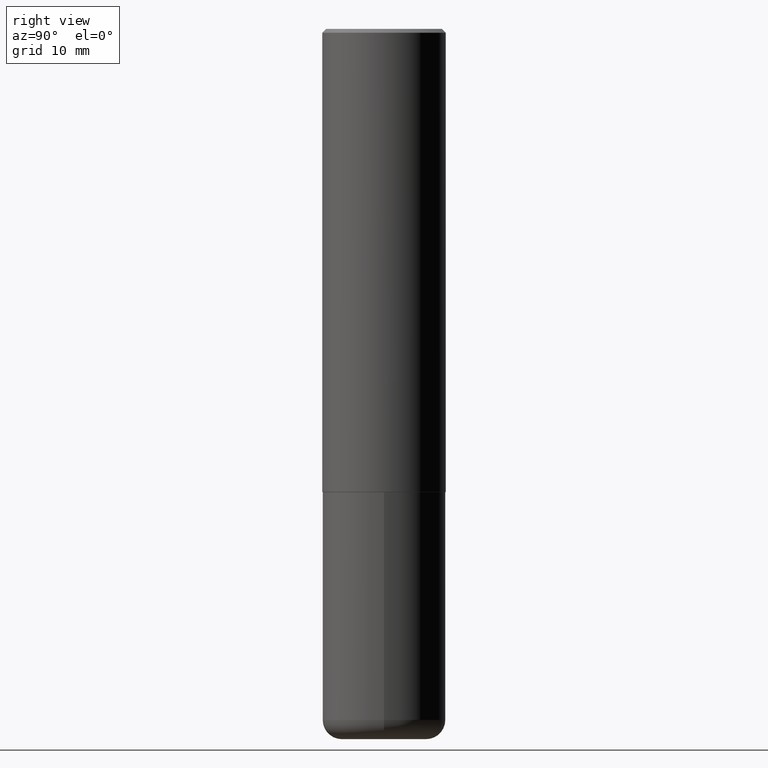
[diagram: clean part render]
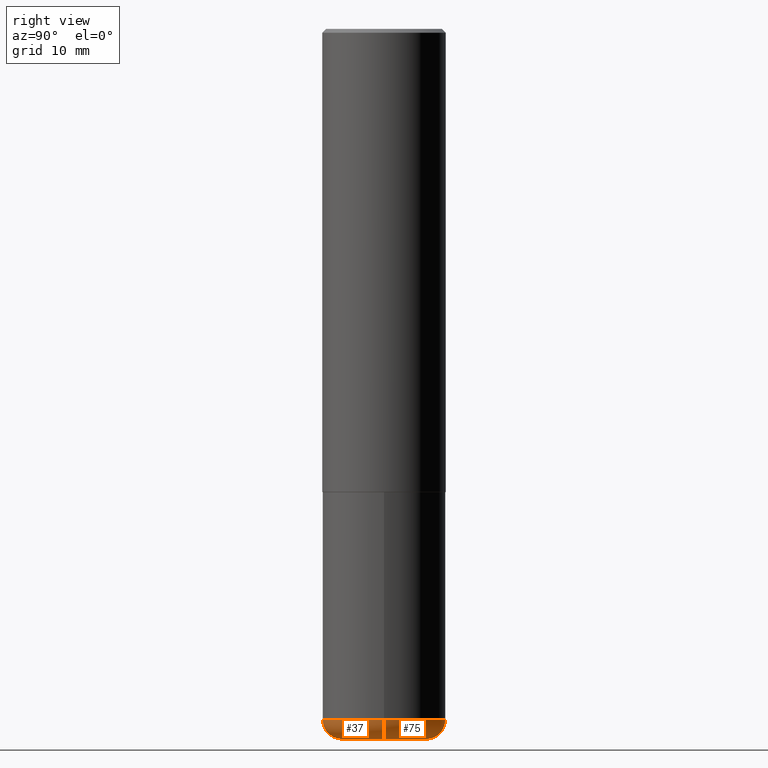
[diagram: same view with one multi-face feature highlighted, each face labeled with its STEP entity id]
A machine part, right view. The highlighted faces form ONE feature: a constant-radius fillet chain: 2 tangent blend faces with common blend radius 2.4994 mm. The faces share edges in the B-rep.
Their STEP definitions:
[1] entity #75 (Torus):
#2 = CIRCLE ( 'NONE', #211, 0.09839999999999986258 ) ;
#3 = CARTESIAN_POINT ( 'NONE',  ( 0.2165500000000000203, -1.415830597714283123E-14, -3.621999999999999442 ) ) ;
#12 = DIRECTION ( 'NONE',  ( 1.000000000000000000, -6.982962677686269866E-15, 0.000000000000000000 ) ) ;
#26 = EDGE_LOOP ( 'NONE', ( #88, #380, #210, #128 ) ) ;
#54 = VERTEX_POINT ( 'NONE', #3 ) ;
#63 = CARTESIAN_POINT ( 'NONE',  ( 8.616853885473946211E-29, -1.230258364554770589E-14, -3.523599999999999621 ) ) ;
#75 = ADVANCED_FACE ( 'NONE', ( #387 ), #120, .T. ) ;
#88 = ORIENTED_EDGE ( 'NONE', *, *, #117, .T. ) ;
#91 = DIRECTION ( 'NONE',  ( 1.000000000000000000, -6.982962677686266711E-15, 4.883557194083112901E-29 ) ) ;
#115 = CARTESIAN_POINT ( 'NONE',  ( -0.2165500000000000203, -1.058609720713632398E-14, -3.621999999999999442 ) ) ;
#117 = EDGE_CURVE ( 'NONE', #54, #378, #182, .T. ) ;
#120 = TOROIDAL_SURFACE ( 'NONE', #392, 0.2165500000000000203, 0.09839999999999984870 ) ;
#128 = ORIENTED_EDGE ( 'NONE', *, *, #188, .F. ) ;
#130 = DIRECTION ( 'NONE',  ( 1.000000000000000000, -6.982962677686264344E-15, 0.000000000000000000 ) ) ;
#157 = CIRCLE ( 'NONE', #261, 0.09839999999999986258 ) ;
#173 = DIRECTION ( 'NONE',  ( 1.000000000000000000, -6.982962677686271444E-15, 0.000000000000000000 ) ) ;
#182 = CIRCLE ( 'NONE', #399, 0.2165500000000000203 ) ;
#185 = EDGE_CURVE ( 'NONE', #277, #243, #361, .T. ) ;
#188 = EDGE_CURVE ( 'NONE', #54, #277, #2, .T. ) ;
#196 = DIRECTION ( 'NONE',  ( -2.445468806185136597E-29, 3.491481338843145583E-15, 1.000000000000000000 ) ) ;
#210 = ORIENTED_EDGE ( 'NONE', *, *, #185, .F. ) ;
#211 = AXIS2_PLACEMENT_3D ( 'NONE', #238, #288, #173 ) ;
#212 = DIRECTION ( 'NONE',  ( -1.000000000000000000, 7.105427357601009747E-15, 0.000000000000000000 ) ) ;
#238 = CARTESIAN_POINT ( 'NONE',  ( 0.2165500000000000203, -1.381474421340066671E-14, -3.523599999999999621 ) ) ;
#239 = CARTESIAN_POINT ( 'NONE',  ( 0.3149499999999999522, -1.450186774088499734E-14, -3.523599999999999621 ) ) ;
#243 = VERTEX_POINT ( 'NONE', #365 ) ;
#247 = CARTESIAN_POINT ( 'NONE',  ( -0.2165500000000000203, -1.076390335125921037E-14, -3.523599999999999621 ) ) ;
#253 = DIRECTION ( 'NONE',  ( -2.445468806185136597E-29, 3.491481338843145583E-15, 1.000000000000000000 ) ) ;
#261 = AXIS2_PLACEMENT_3D ( 'NONE', #247, #286, #212 ) ;
#277 = VERTEX_POINT ( 'NONE', #239 ) ;
#286 = DIRECTION ( 'NONE',  ( 7.105427357601001859E-15, 1.000000000000000000, -3.491481338843145583E-15 ) ) ;
#288 = DIRECTION ( 'NONE',  ( -6.982962677686266711E-15, -1.000000000000000000, 3.491481338843145583E-15 ) ) ;
#292 = CARTESIAN_POINT ( 'NONE',  ( 8.857488016002563354E-29, -1.264614540928987041E-14, -3.621999999999999442 ) ) ;
#332 = AXIS2_PLACEMENT_3D ( 'NONE', #340, #253, #12 ) ;
#340 = CARTESIAN_POINT ( 'NONE',  ( 8.616853885473946211E-29, -1.230258364554770589E-14, -3.523599999999999621 ) ) ;
#349 = EDGE_CURVE ( 'NONE', #378, #243, #157, .T. ) ;
#361 = CIRCLE ( 'NONE', #332, 0.3149500000000000077 ) ;
#365 = CARTESIAN_POINT ( 'NONE',  ( -0.3149499999999999522, -1.006472929927126990E-14, -3.523599999999999621 ) ) ;
#378 = VERTEX_POINT ( 'NONE', #115 ) ;
#380 = ORIENTED_EDGE ( 'NONE', *, *, #349, .T. ) ;
#387 = FACE_OUTER_BOUND ( 'NONE', #26, .T. ) ;
#392 = AXIS2_PLACEMENT_3D ( 'NONE', #63, #196, #91 ) ;
#399 = AXIS2_PLACEMENT_3D ( 'NONE', #292, #418, #130 ) ;
#418 = DIRECTION ( 'NONE',  ( -2.445468806185136597E-29, 3.491481338843145583E-15, 1.000000000000000000 ) ) ;
[2] entity #37 (Torus):
#2 = CIRCLE ( 'NONE', #211, 0.09839999999999986258 ) ;
#3 = CARTESIAN_POINT ( 'NONE',  ( 0.2165500000000000203, -1.415830597714283123E-14, -3.621999999999999442 ) ) ;
#7 = EDGE_CURVE ( 'NONE', #243, #277, #342, .T. ) ;
#9 = CIRCLE ( 'NONE', #240, 0.2165500000000000203 ) ;
#22 = ORIENTED_EDGE ( 'NONE', *, *, #7, .F. ) ;
#37 = ADVANCED_FACE ( 'NONE', ( #359 ), #121, .T. ) ;
#51 = ORIENTED_EDGE ( 'NONE', *, *, #384, .T. ) ;
#54 = VERTEX_POINT ( 'NONE', #3 ) ;
#57 = AXIS2_PLACEMENT_3D ( 'NONE', #330, #99, #133 ) ;
#81 = DIRECTION ( 'NONE',  ( -2.445468806185136597E-29, 3.491481338843145583E-15, 1.000000000000000000 ) ) ;
#99 = DIRECTION ( 'NONE',  ( -2.445468806185136597E-29, 3.491481338843145583E-15, 1.000000000000000000 ) ) ;
#100 = CARTESIAN_POINT ( 'NONE',  ( 8.616853885473946211E-29, -1.230258364554770589E-14, -3.523599999999999621 ) ) ;
#115 = CARTESIAN_POINT ( 'NONE',  ( -0.2165500000000000203, -1.058609720713632398E-14, -3.621999999999999442 ) ) ;
#121 = TOROIDAL_SURFACE ( 'NONE', #57, 0.2165500000000000203, 0.09839999999999984870 ) ;
#133 = DIRECTION ( 'NONE',  ( 1.000000000000000000, -6.982962677686266711E-15, 4.883557194083112901E-29 ) ) ;
#157 = CIRCLE ( 'NONE', #261, 0.09839999999999986258 ) ;
#173 = DIRECTION ( 'NONE',  ( 1.000000000000000000, -6.982962677686271444E-15, 0.000000000000000000 ) ) ;
#180 = DIRECTION ( 'NONE',  ( 1.000000000000000000, -6.982962677686264344E-15, 0.000000000000000000 ) ) ;
#188 = EDGE_CURVE ( 'NONE', #54, #277, #2, .T. ) ;
#194 = AXIS2_PLACEMENT_3D ( 'NONE', #100, #254, #225 ) ;
#211 = AXIS2_PLACEMENT_3D ( 'NONE', #238, #288, #173 ) ;
#212 = DIRECTION ( 'NONE',  ( -1.000000000000000000, 7.105427357601009747E-15, 0.000000000000000000 ) ) ;
#225 = DIRECTION ( 'NONE',  ( 1.000000000000000000, -6.982962677686269866E-15, 0.000000000000000000 ) ) ;
#238 = CARTESIAN_POINT ( 'NONE',  ( 0.2165500000000000203, -1.381474421340066671E-14, -3.523599999999999621 ) ) ;
#239 = CARTESIAN_POINT ( 'NONE',  ( 0.3149499999999999522, -1.450186774088499734E-14, -3.523599999999999621 ) ) ;
#240 = AXIS2_PLACEMENT_3D ( 'NONE', #347, #81, #180 ) ;
#243 = VERTEX_POINT ( 'NONE', #365 ) ;
#247 = CARTESIAN_POINT ( 'NONE',  ( -0.2165500000000000203, -1.076390335125921037E-14, -3.523599999999999621 ) ) ;
#248 = ORIENTED_EDGE ( 'NONE', *, *, #349, .F. ) ;
#254 = DIRECTION ( 'NONE',  ( -2.445468806185136597E-29, 3.491481338843145583E-15, 1.000000000000000000 ) ) ;
#261 = AXIS2_PLACEMENT_3D ( 'NONE', #247, #286, #212 ) ;
#277 = VERTEX_POINT ( 'NONE', #239 ) ;
#286 = DIRECTION ( 'NONE',  ( 7.105427357601001859E-15, 1.000000000000000000, -3.491481338843145583E-15 ) ) ;
#288 = DIRECTION ( 'NONE',  ( -6.982962677686266711E-15, -1.000000000000000000, 3.491481338843145583E-15 ) ) ;
#315 = EDGE_LOOP ( 'NONE', ( #248, #51, #396, #22 ) ) ;
#330 = CARTESIAN_POINT ( 'NONE',  ( 8.616853885473946211E-29, -1.230258364554770589E-14, -3.523599999999999621 ) ) ;
#342 = CIRCLE ( 'NONE', #194, 0.3149500000000000077 ) ;
#347 = CARTESIAN_POINT ( 'NONE',  ( 8.857488016002563354E-29, -1.264614540928987041E-14, -3.621999999999999442 ) ) ;
#349 = EDGE_CURVE ( 'NONE', #378, #243, #157, .T. ) ;
#359 = FACE_OUTER_BOUND ( 'NONE', #315, .T. ) ;
#365 = CARTESIAN_POINT ( 'NONE',  ( -0.3149499999999999522, -1.006472929927126990E-14, -3.523599999999999621 ) ) ;
#378 = VERTEX_POINT ( 'NONE', #115 ) ;
#384 = EDGE_CURVE ( 'NONE', #378, #54, #9, .T. ) ;
#396 = ORIENTED_EDGE ( 'NONE', *, *, #188, .T. ) ;